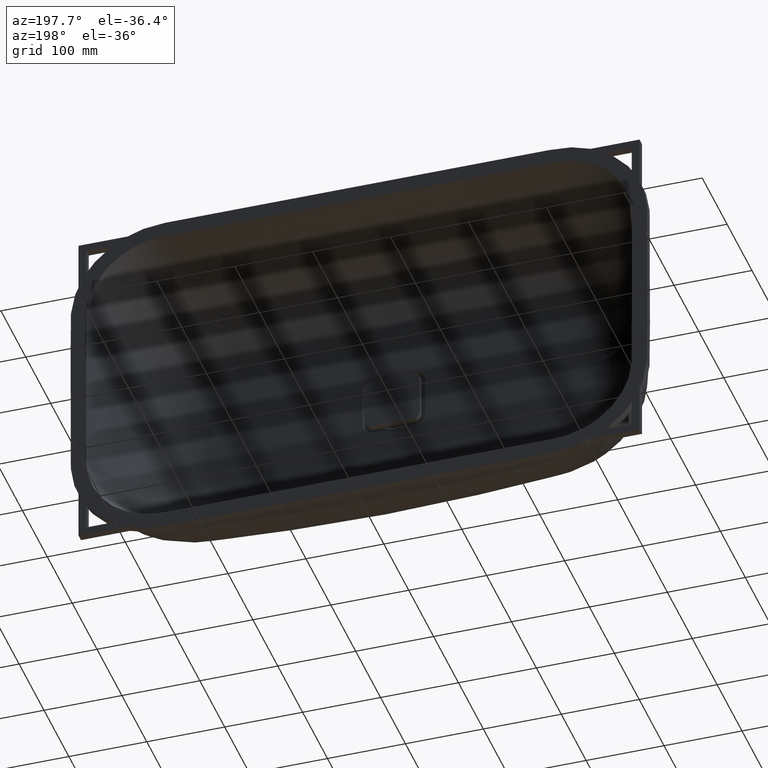
[diagram: clean part render]
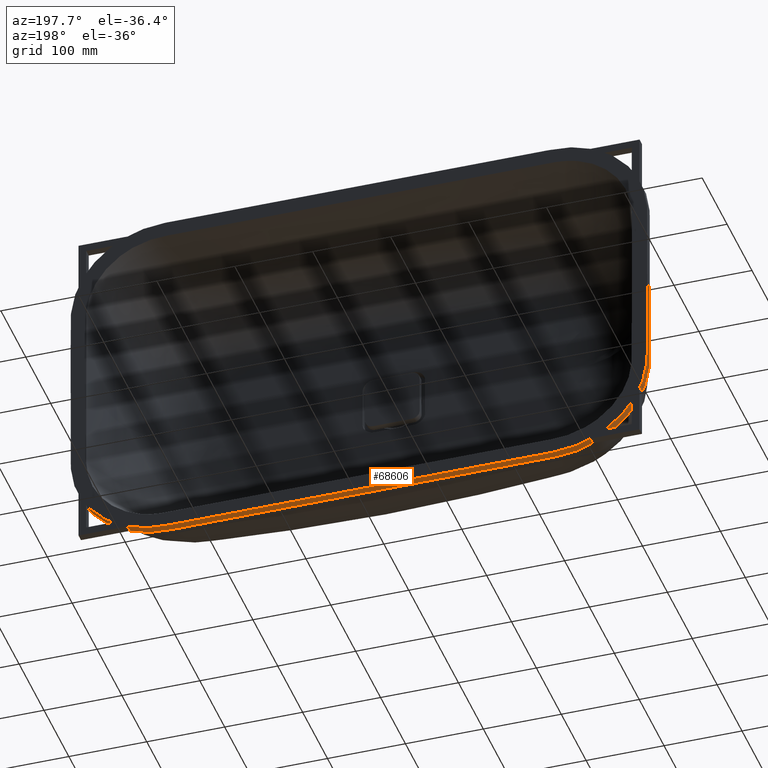
[diagram: same view with one face highlighted and labeled with its STEP entity id]
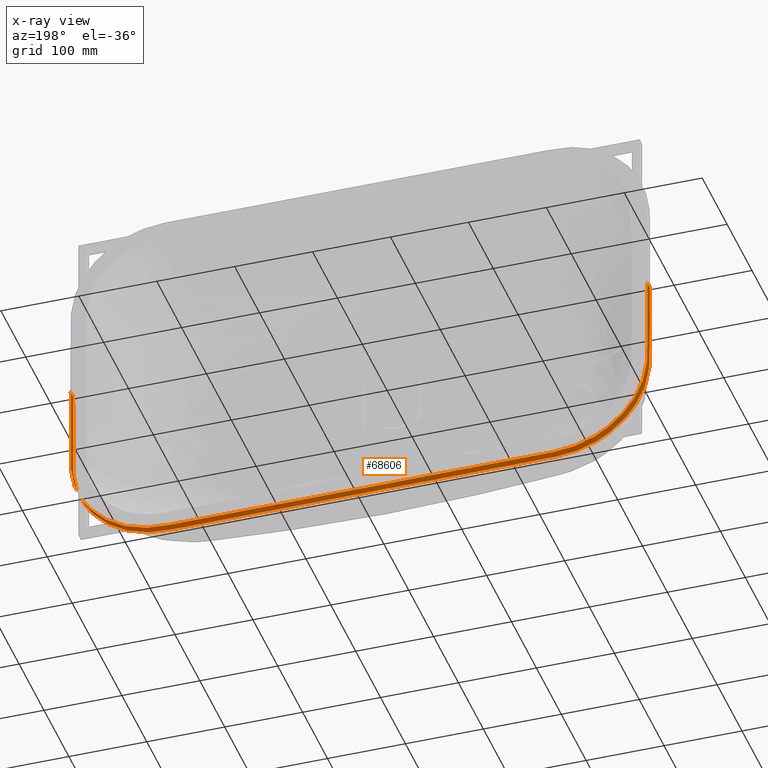
[diagram: x-ray of the same camera — body ghosted, the highlighted face saturated]
A machine part, auxiliary view. The second image highlights one B-rep face of the part: STEP entity #68606.
The next image is the same camera in x-ray: the body ghosted, the highlighted face saturated — about 0% of this face is hidden behind the body in this view.
In plain terms, the highlighted face is a freeform B-spline surface patch.
Its self-contained STEP definition (entity closure, byte-faithful):
#234 = CARTESIAN_POINT ( 'NONE',  ( 32.44533689492934769, -10.00000000000007283, -230.0000000000380282 ) ) ;
#314 = CARTESIAN_POINT ( 'NONE',  ( -156.8191275139739389, -10.00000000000007283, -230.0000000053955489 ) ) ;
#646 = CARTESIAN_POINT ( 'NONE',  ( -241.3132199434992344, -10.00000000000007283, -229.9999933736824858 ) ) ;
#726 = CARTESIAN_POINT ( 'NONE',  ( -235.2282897767607039, -7.285838599102589797E-14, -230.0000025992095516 ) ) ;
#1039 = CARTESIAN_POINT ( 'NONE',  ( 369.9999999215503408, -2.772712417528776703E-14, -87.87279466569438569 ) ) ;
#1058 = CARTESIAN_POINT ( 'NONE',  ( -280.3363205952121575, -10.00000000000007105, -226.2329616254818916 ) ) ;
#1139 = CARTESIAN_POINT ( 'NONE',  ( -250.7332074480156336, -10.00000000000007283, -229.9991818206130745 ) ) ;
#1458 = CARTESIAN_POINT ( 'NONE',  ( 369.6864430236647081, -3.758052570092851383E-14, -119.1001921969885871 ) ) ;
#1478 = CARTESIAN_POINT ( 'NONE',  ( -369.6864430236646513, -10.00000000000003908, -119.1001921969901218 ) ) ;
#1559 = CARTESIAN_POINT ( 'NONE',  ( -272.5347273984065737, -7.112366251504909087E-14, -227.9402078853945000 ) ) ;
#1779 = LINE ( 'NONE', #27400, #68443 ) ;
#1882 = CARTESIAN_POINT ( 'NONE',  ( 280.3363205952139765, -7.138488588416020489E-14, -226.2329616254814653 ) ) ;
#1900 = CARTESIAN_POINT ( 'NONE',  ( -369.9999999215503408, -10.00000000000002842, -87.87279466569546571 ) ) ;
#1982 = CARTESIAN_POINT ( 'NONE',  ( -353.0913786025862464, -10.00000000000005329, -171.9959201989187818 ) ) ;
#2294 = CARTESIAN_POINT ( 'NONE',  ( 241.3132199435013376, -7.257352404517452683E-14, -229.9999933736824289 ) ) ;
#2397 = CARTESIAN_POINT ( 'NONE',  ( -369.2231796589290411, -3.989863994746656317E-14, -123.9083132636469600 ) ) ;
#2710 = CARTESIAN_POINT ( 'NONE',  ( -32.44533689492683237, -7.257352613603534883E-14, -230.0000000000380282 ) ) ;
#2812 = CARTESIAN_POINT ( 'NONE',  ( -370.0000523813992004, -10.00000000000003553, -108.4842689358032857 ) ) ;
#2908 = CARTESIAN_POINT ( 'NONE',  ( 369.9999999986165449, -10.00000000000001066, -32.44533702614127435 ) ) ;
#3122 = CARTESIAN_POINT ( 'NONE',  ( -247.0602996470166204, -7.257352088615581357E-14, -229.9999833621212417 ) ) ;
#3221 = CARTESIAN_POINT ( 'NONE',  ( -370.0000001376325827, -2.949029909160572061E-14, -93.28033090629502055 ) ) ;
#3318 = CARTESIAN_POINT ( 'NONE',  ( 369.9999994738986970, -3.122502256758252770E-14, -97.33605917397574103 ) ) ;
#3524 = CARTESIAN_POINT ( 'NONE',  ( -301.3375124675763459, -6.903844104798725289E-14, -218.7966092659687547 ) ) ;
#3623 = CARTESIAN_POINT ( 'NONE',  ( -370.0000000000000568, -10.00000000000000178, -5.407556139488238323 ) ) ;
#3719 = CARTESIAN_POINT ( 'NONE',  ( 370.0002737202537446, -10.00000000000003553, -109.9847503573792267 ) ) ;
#3936 = CARTESIAN_POINT ( 'NONE',  ( -369.9837355351533574, -3.541286203545981495E-14, -112.2304330767916696 ) ) ;
#4057 = ORIENTED_EDGE ( 'NONE', *, *, #13613, .T. ) ;
#4135 = CARTESIAN_POINT ( 'NONE',  ( 368.5694265312986886, -3.989863994746656317E-14, -128.6755109102203960 ) ) ;
#4359 = CARTESIAN_POINT ( 'NONE',  ( -369.9999999808322286, -2.047541364857557800E-14, -64.89067556598723741 ) ) ;
#4562 = CARTESIAN_POINT ( 'NONE',  ( 330.7752597798513534, -10.00000000000006217, -199.4472116028083519 ) ) ;
#4896 = CARTESIAN_POINT ( 'NONE',  ( 370.0000000003951186, -10.00000000000000533, -16.22266841846388274 ) ) ;
#4974 = CARTESIAN_POINT ( 'NONE',  ( 266.2030324053499157, -7.285838599102589797E-14, -228.9327285942423771 ) ) ;
#5304 = CARTESIAN_POINT ( 'NONE',  ( 369.9998421130367205, -10.00000000000003553, -109.3485733155321071 ) ) ;
#5386 = CARTESIAN_POINT ( 'NONE',  ( 249.2680254088382128, -10.00000000000007283, -229.9999129777619373 ) ) ;
#5595 = VERTEX_POINT ( 'NONE', #9767 ) ;
#5724 = CARTESIAN_POINT ( 'NONE',  ( 344.0916251262462424, -10.00000000000005862, -185.3011088497730441 ) ) ;
#5803 = CARTESIAN_POINT ( 'NONE',  ( 227.1174660438736055, -7.285838599102589797E-14, -229.9999993046553186 ) ) ;
#6137 = CARTESIAN_POINT ( 'NONE',  ( 249.9071089342750156, -10.00000000000007283, -230.0001508669375880 ) ) ;
#6214 = CARTESIAN_POINT ( 'NONE',  ( 97.33601062392219205, -10.00000000000007283, -230.0000000004915819 ) ) ;
#6538 = CARTESIAN_POINT ( 'NONE',  ( 129.7813478840299126, -10.00000000000007283, -229.9999999981669703 ) ) ;
#6616 = CARTESIAN_POINT ( 'NONE',  ( -97.33601062391973358, -7.285838599102589797E-14, -230.0000000004914398 ) ) ;
#6945 = CARTESIAN_POINT ( 'NONE',  ( -219.0059958477463340, -10.00000000000007283, -230.0000001821697992 ) ) ;
#7027 = CARTESIAN_POINT ( 'NONE',  ( -227.1174660438715591, -10.00000000000007283, -229.9999993046552902 ) ) ;
#7348 = CARTESIAN_POINT ( 'NONE',  ( 370.0000000051375650, -1.535655966924644818E-14, -48.66800487696705346 ) ) ;
#7368 = CARTESIAN_POINT ( 'NONE',  ( -261.4155354305581227, -10.00000000000007283, -229.4878407854313878 ) ) ;
#7449 = CARTESIAN_POINT ( 'NONE',  ( -249.2680254088362801, -7.285838599102589797E-14, -229.9999129777618236 ) ) ;
#7761 = CARTESIAN_POINT ( 'NONE',  ( 369.9985107857468734, -3.497370708823961095E-14, -110.8386633332168856 ) ) ;
#7781 = CARTESIAN_POINT ( 'NONE',  ( -367.4470581483514593, -10.00000000000004441, -134.9774096808805552 ) ) ;
#7861 = CARTESIAN_POINT ( 'NONE',  ( -266.2030324053478694, -10.00000000000007283, -228.9327285942426329 ) ) ;
#8182 = CARTESIAN_POINT ( 'NONE',  ( 315.4333475073850650, -6.663998841689066950E-14, -211.1954338164214846 ) ) ;
#8200 = CARTESIAN_POINT ( 'NONE',  ( -370.0000015512933942, -10.00000000000003197, -100.7155903604959946 ) ) ;
#8281 = CARTESIAN_POINT ( 'NONE',  ( -330.7752597798499323, -6.245004513516505540E-14, -199.4472116028095741 ) ) ;
#8601 = CARTESIAN_POINT ( 'NONE',  ( 248.4051379303418798, -7.257353524414461326E-14, -230.0000288654555050 ) ) ;
#8702 = CARTESIAN_POINT ( 'NONE',  ( -368.5694265312981770, -10.00000000000004086, -128.6755109102220445 ) ) ;
#9015 = CARTESIAN_POINT ( 'NONE',  ( 64.89067382028906650, -7.257352613598166842E-14, -229.9999999998679243 ) ) ;
#9117 = CARTESIAN_POINT ( 'NONE',  ( -370.0002737202536878, -3.469446951953614189E-14, -109.9847503573808467 ) ) ;
#9211 = CARTESIAN_POINT ( 'NONE',  ( 369.9999999999998863, -1.734723475976807094E-15, -5.407556139487590841 ) ) ;
#9423 = CARTESIAN_POINT ( 'NONE',  ( -235.2282897767607039, -7.257352695617029754E-14, -230.0000025992095516 ) ) ;
#9526 = CARTESIAN_POINT ( 'NONE',  ( -369.9999994738986970, -10.00000000000003197, -97.33605917397697738 ) ) ;
#9622 = CARTESIAN_POINT ( 'NONE',  ( 370.0000001376323553, -10.00000000000003020, -93.28033090629377000 ) ) ;
#9767 = CARTESIAN_POINT ( 'NONE',  ( -370.0000000000000000, 7.703719777548943412E-31, -3.426078865054194011E-14 ) ) ;
#9833 = CARTESIAN_POINT ( 'NONE',  ( -272.5347273984065737, -7.192358536704899217E-14, -227.9402078853945000 ) ) ;
#9849 = CARTESIAN_POINT ( 'NONE',  ( 369.9999999999998863, 1.698670210949542022E-28, 5.754945131553057536E-13 ) ) ;
#9932 = CARTESIAN_POINT ( 'NONE',  ( -369.9999999986166586, -1.040834085586084257E-14, -32.44533702614214832 ) ) ;
#10030 = CARTESIAN_POINT ( 'NONE',  ( 370.0000523813992572, -3.469446951953614189E-14, -108.4842689358019783 ) ) ;
#10238 = CARTESIAN_POINT ( 'NONE',  ( -369.2231796589290411, -3.909766613526020739E-14, -123.9083132636469600 ) ) ;
#10434 = CARTESIAN_POINT ( 'NONE',  ( 369.2231796589293253, -10.00000000000004086, -123.9083132636453826 ) ) ;
#10651 = CARTESIAN_POINT ( 'NONE',  ( -370.0000001376325827, -2.943340231741263106E-14, -93.28033090629502055 ) ) ;
#10850 = CARTESIAN_POINT ( 'NONE',  ( 353.0913786025872128, -5.377642775528101993E-14, -171.9959201989173323 ) ) ;
#11277 = CARTESIAN_POINT ( 'NONE',  ( 272.5347273984087337, -10.00000000000007105, -227.9402078853939031 ) ) ;
#11611 = CARTESIAN_POINT ( 'NONE',  ( 370.0000102567382783, -10.00000000000003375, -105.4463998884235565 ) ) ;
#11693 = CARTESIAN_POINT ( 'NONE',  ( 250.7332074480180211, -7.285838599102589797E-14, -229.9991818206131029 ) ) ;
#12024 = CARTESIAN_POINT ( 'NONE',  ( 362.6162986912615338, -10.00000000000004796, -151.8170165020840727 ) ) ;
#12104 = CARTESIAN_POINT ( 'NONE',  ( 235.2282897767625229, -10.00000000000007283, -230.0000025992096653 ) ) ;
#12439 = CARTESIAN_POINT ( 'NONE',  ( 254.1704036494629122, -10.00000000000007283, -229.9357047427392331 ) ) ;
#12516 = CARTESIAN_POINT ( 'NONE',  ( 156.8191275139761842, -7.285838599102589797E-14, -230.0000000053956910 ) ) ;
#12844 = CARTESIAN_POINT ( 'NONE',  ( 194.6720158728535353, -10.00000000000007283, -230.0000000356706664 ) ) ;
#12923 = CARTESIAN_POINT ( 'NONE',  ( -64.89067382028653697, -10.00000000000007283, -229.9999999998678959 ) ) ;
#13246 = CARTESIAN_POINT ( 'NONE',  ( -178.4493543980379968, -10.00000000000007283, -229.9999999906547998 ) ) ;
#13322 = CARTESIAN_POINT ( 'NONE',  ( -208.1909280709333530, -7.285838599102589797E-14, -229.9999998948312339 ) ) ;
#13613 = EDGE_CURVE ( 'NONE', #27047, #5595, #1779, .T. ) ;
#13640 = CARTESIAN_POINT ( 'NONE',  ( 369.9999999999998863, -1.706284420961386148E-15, -5.407556139487589952 ) ) ;
#13658 = CARTESIAN_POINT ( 'NONE',  ( -252.1423367717178792, -10.00000000000007283, -229.9854392652011370 ) ) ;
#13743 = CARTESIAN_POINT ( 'NONE',  ( -248.4051379303399756, -10.00000000000007283, -230.0000288654555334 ) ) ;
#14057 = CARTESIAN_POINT ( 'NONE',  ( 370.0000523813992572, -3.423080837808614069E-14, -108.4842689358019783 ) ) ;
#14078 = CARTESIAN_POINT ( 'NONE',  ( -358.9368303385655281, -10.00000000000004974, -160.6374205879357362 ) ) ;
#14159 = CARTESIAN_POINT ( 'NONE',  ( -257.3966411606812699, -7.285838599102589797E-14, -229.7905751632785041 ) ) ;
#14476 = CARTESIAN_POINT ( 'NONE',  ( 353.0913786025872128, -5.427108873845876293E-14, -171.9959201989173323 ) ) ;
#14496 = CARTESIAN_POINT ( 'NONE',  ( -369.9999697595850421, -10.00000000000003375, -107.1399925168129528 ) ) ;
#14578 = CARTESIAN_POINT ( 'NONE',  ( -315.4333475073833597, -10.00000000000006573, -211.1954338164225931 ) ) ;
#14898 = CARTESIAN_POINT ( 'NONE',  ( 250.7332074480180211, -7.257326797009674944E-14, -229.9991818206131029 ) ) ;
#14917 = CARTESIAN_POINT ( 'NONE',  ( -370.0000000000000000, -10.00000000000000000, -3.122502256758252770E-14 ) ) ;
#14998 = CARTESIAN_POINT ( 'NONE',  ( -365.5811764428859760, -4.510281037539698445E-14, -142.7334832046062161 ) ) ;
#15319 = CARTESIAN_POINT ( 'NONE',  ( 156.8191275139761842, -7.257352613772588406E-14, -230.0000000053956910 ) ) ;
#15422 = CARTESIAN_POINT ( 'NONE',  ( -369.9985107857469302, -10.00000000000003553, -110.8386633332185340 ) ) ;
#15517 = CARTESIAN_POINT ( 'NONE',  ( 369.9999999999998863, -10.00000000000000000, 5.785302792382651660E-13 ) ) ;
#15729 = CARTESIAN_POINT ( 'NONE',  ( -208.1909280709333530, -7.257352610283869354E-14, -229.9999998948312339 ) ) ;
#15827 = CARTESIAN_POINT ( 'NONE',  ( -369.9999973128921624, -3.295974604355933479E-14, -103.4197589538131581 ) ) ;
#15922 = CARTESIAN_POINT ( 'NONE',  ( 370.0000000564162406, -2.428612866367529932E-14, -78.40955897690069776 ) ) ;
#16130 = CARTESIAN_POINT ( 'NONE',  ( -257.3966411606812699, -7.250744483662619752E-14, -229.7905751632785041 ) ) ;
#16233 = CARTESIAN_POINT ( 'NONE',  ( -370.0000000051377356, -10.00000000000001599, -48.66800487696790611 ) ) ;
#16331 = CARTESIAN_POINT ( 'NONE',  ( 369.9999697595848716, -10.00000000000003375, -107.1399925168115601 ) ) ;
#16539 = CARTESIAN_POINT ( 'NONE',  ( -365.5811764428859760, -4.503770510363102224E-14, -142.7334832046062161 ) ) ;
#16742 = CARTESIAN_POINT ( 'NONE',  ( 369.9117756355505549, -3.642919299551294898E-14, -115.0811365367326005 ) ) ;
#16959 = CARTESIAN_POINT ( 'NONE',  ( -369.9999973128921624, -3.263276773659039088E-14, -103.4197589538131581 ) ) ;
#17155 = CARTESIAN_POINT ( 'NONE',  ( 358.9368303385662671, -10.00000000000004974, -160.6374205879343435 ) ) ;
#17573 = CARTESIAN_POINT ( 'NONE',  ( 289.4804807030358802, -7.112366251504909087E-14, -223.4557360990964980 ) ) ;
#17915 = CARTESIAN_POINT ( 'NONE',  ( 369.9999994738986970, -10.00000000000003197, -97.33605917397574103 ) ) ;
#17996 = CARTESIAN_POINT ( 'NONE',  ( 252.1423367717200392, -10.00000000000007283, -229.9854392652010802 ) ) ;
#18331 = CARTESIAN_POINT ( 'NONE',  ( 368.5694265312986886, -10.00000000000004086, -128.6755109102203960 ) ) ;
#18410 = CARTESIAN_POINT ( 'NONE',  ( 245.3670214626352788, -7.285838599102589797E-14, -230.0000054136311007 ) ) ;
#18740 = CARTESIAN_POINT ( 'NONE',  ( 266.2030324053499157, -10.00000000000007283, -228.9327285942423771 ) ) ;
#18818 = CARTESIAN_POINT ( 'NONE',  ( 178.4493543980402706, -10.00000000000007283, -229.9999999906549704 ) ) ;
#18830 = B_SPLINE_SURFACE_WITH_KNOTS ( 'NONE', 3, 1, ( 
 ( #15517, #41133 ),
 ( #66758, #9211 ),
 ( #34829, #60445 ),
 ( #2908, #28530 ),
 ( #54145, #79787 ),
 ( #22227, #47841 ),
 ( #73476, #15922 ),
 ( #41537, #67166 ),
 ( #9622, #35240 ),
 ( #60854, #3318 ),
 ( #28935, #54544 ),
 ( #80192, #22633 ),
 ( #48244, #73881 ),
 ( #16331, #41945 ),
 ( #67573, #10030 ),
 ( #35645, #61257 ),
 ( #3719, #29341 ),
 ( #54951, #80598 ),
 ( #23042, #48658 ),
 ( #74297, #16742 ),
 ( #42358, #67980 ),
 ( #10434, #36052 ),
 ( #61672, #4135 ),
 ( #29760, #55368 ),
 ( #81019, #23460 ),
 ( #49074, #74712 ),
 ( #17155, #42772 ),
 ( #68393, #10850 ),
 ( #36471, #62094 ),
 ( #4562, #30183 ),
 ( #55787, #81434 ),
 ( #23871, #49488 ),
 ( #75130, #17573 ),
 ( #43196, #68820 ),
 ( #11277, #36894 ),
 ( #62514, #4974 ),
 ( #30599, #56200 ),
 ( #81850, #24291 ),
 ( #49912, #75553 ),
 ( #17996, #43618 ),
 ( #69241, #11693 ),
 ( #37306, #62928 ),
 ( #5386, #31011 ),
 ( #56619, #82269 ),
 ( #24712, #50329 ),
 ( #75971, #18410 ),
 ( #44030, #69654 ),
 ( #12104, #37720 ),
 ( #63341, #5803 ),
 ( #31429, #57037 ),
 ( #82684, #25121 ),
 ( #50738, #76375 ),
 ( #18818, #44437 ),
 ( #70066, #12516 ),
 ( #38134, #63753 ),
 ( #6214, #31834 ),
 ( #57443, #83087 ),
 ( #25526, #51144 ),
 ( #76782, #19225 ),
 ( #44846, #70474 ),
 ( #12923, #38535 ),
 ( #64153, #6616 ),
 ( #32235, #57847 ),
 ( #314, #25932 ),
 ( #51552, #77183 ),
 ( #19624, #45244 ),
 ( #70874, #13322 ),
 ( #38941, #64562 ),
 ( #7027, #32642 ),
 ( #58260, #726 ),
 ( #26338, #51956 ),
 ( #77592, #20037 ),
 ( #45660, #71291 ),
 ( #13743, #39364 ),
 ( #64983, #7449 ),
 ( #33064, #58676 ),
 ( #1139, #26754 ),
 ( #52373, #78015 ),
 ( #20461, #46082 ),
 ( #71715, #14159 ),
 ( #39780, #65399 ),
 ( #7861, #33476 ),
 ( #59093, #1559 ),
 ( #27179, #52799 ),
 ( #78443, #20882 ),
 ( #46499, #72133 ),
 ( #14578, #40196 ),
 ( #65817, #8281 ),
 ( #33902, #59515 ),
 ( #1982, #27603 ),
 ( #53216, #78856 ),
 ( #21294, #46912 ),
 ( #72552, #14998 ),
 ( #40619, #66244 ),
 ( #8702, #34320 ),
 ( #59936, #2397 ),
 ( #28018, #53632 ),
 ( #79276, #21721 ),
 ( #47335, #72974 ),
 ( #15422, #41039 ),
 ( #66663, #9117 ),
 ( #34734, #60350 ),
 ( #2812, #28435 ),
 ( #54050, #79693 ),
 ( #22135, #47747 ),
 ( #73382, #15827 ),
 ( #41442, #67069 ),
 ( #9526, #35142 ),
 ( #60758, #3221 ),
 ( #28842, #54451 ),
 ( #80097, #22538 ),
 ( #48149, #73785 ),
 ( #16233, #41847 ),
 ( #67476, #9932 ),
 ( #35550, #61164 ),
 ( #3623, #29242 ),
 ( #54853, #80501 ) ),
 .UNSPECIFIED., .F., .F., .F.,
 ( 4, 1, 1, 1, 1, 1, 1, 1, 1, 1, 1, 1, 1, 1, 1, 1, 1, 1, 1, 1, 1, 1, 1, 1, 1, 1, 1, 1, 1, 1, 1, 1, 1, 1, 1, 1, 1, 1, 1, 1, 1, 1, 1, 1, 1, 1, 1, 1, 1, 1, 1, 1, 1, 1, 1, 1, 1, 1, 1, 1, 1, 1, 1, 1, 1, 1, 1, 1, 1, 1, 1, 1, 1, 1, 1, 1, 1, 1, 1, 1, 1, 1, 1, 1, 1, 1, 1, 1, 1, 1, 1, 1, 1, 1, 1, 1, 1, 1, 1, 1, 1, 1, 1, 1, 1, 1, 1, 1, 1, 1, 1, 1, 1, 1, 4 ),
 ( 2, 2 ),
 ( 0.5000000000000000000, 0.5078125000000000000, 0.5156250000000000000, 0.5234375000000000000, 0.5312500000000000000, 0.5390625000000000000, 0.5429687500000000000, 0.5449218750000000000, 0.5468750000000000000, 0.5488281250000000000, 0.5498046875000000000, 0.5507812500000000000, 0.5517578125000000000, 0.5522460937500000000, 0.5527343750000000000, 0.5529785156250000000, 0.5532226562500000000, 0.5537109375000000000, 0.5546875000000000000, 0.5566406250000000000, 0.5585937500000000000, 0.5605468750000000000, 0.5625000000000000000, 0.5664062500000000000, 0.5703125000000000000, 0.5742187500000000000, 0.5781250000000000000, 0.5859375000000000000, 0.5937500000000000000, 0.6015625000000000000, 0.6093750000000000000, 0.6132812500000000000, 0.6171875000000000000, 0.6210937500000000000, 0.6230468750000000000, 0.6250000000000000000, 0.6269531250000000000, 0.6279296875000000000, 0.6289062500000000000, 0.6293945312500000000, 0.6296386718750000000, 0.6298828125000000000, 0.6303710937500000000, 0.6308593750000000000, 0.6318359375000000000, 0.6328125000000000000, 0.6367187500000000000, 0.6406250000000000000, 0.6445312500000000000, 0.6484375000000000000, 0.6562500000000000000, 0.6640625000000000000, 0.6718750000000000000, 0.6875000000000000000, 0.7031250000000000000, 0.7187500000000000000, 0.7343750000000000000, 0.7500000000000000000, 0.7656250000000000000, 0.7812500000000000000, 0.7968750000000000000, 0.8125000000000000000, 0.8281250000000000000, 0.8359375000000000000, 0.8437500000000000000, 0.8515625000000000000, 0.8554687500000000000, 0.8593750000000000000, 0.8632812500000000000, 0.8671875000000000000, 0.8681640625000000000, 0.8691406250000000000, 0.8696289062500000000, 0.8701171875000000000, 0.8703613281250000000, 0.8706054687500000000, 0.8710937500000000000, 0.8720703125000000000, 0.8730468750000000000, 0.8750000000000000000, 0.8769531250000000000, 0.8789062500000000000, 0.8828125000000000000, 0.8867187500000000000, 0.8906250000000000000, 0.8984375000000000000, 0.9062500000000000000, 0.9140625000000000000, 0.9218750000000000000, 0.9257812500000000000, 0.9296875000000000000, 0.9335937500000000000, 0.9375000000000000000, 0.9394531250000000000, 0.9414062500000000000, 0.9433593750000000000, 0.9453125000000000000, 0.9462890625000000000, 0.9467773437500000000, 0.9470214843750000000, 0.9472656250000000000, 0.9477539062500000000, 0.9482421875000000000, 0.9492187500000000000, 0.9501953125000000000, 0.9511718750000000000, 0.9531250000000000000, 0.9550781250000000000, 0.9570312500000000000, 0.9609375000000000000, 0.9687500000000000000, 0.9765625000000000000, 0.9843750000000000000, 0.9921875000000000000, 1.000000000000000000 ),
 ( 0.0000000000000000000, 1.000000000000000000 ),
 .UNSPECIFIED. ) ;
#19148 = CARTESIAN_POINT ( 'NONE',  ( 227.1174660438736055, -10.00000000000007283, -229.9999993046553186 ) ) ;
#19225 = CARTESIAN_POINT ( 'NONE',  ( 1.292368989602721285E-12, -7.285838599102589797E-14, -229.9999999999812701 ) ) ;
#19547 = CARTESIAN_POINT ( 'NONE',  ( -97.33601062391973358, -10.00000000000007283, -230.0000000004914398 ) ) ;
#19624 = CARTESIAN_POINT ( 'NONE',  ( -194.6720158728513752, -10.00000000000007283, -230.0000000356705812 ) ) ;
#19956 = CARTESIAN_POINT ( 'NONE',  ( -249.2680254088362801, -10.00000000000007283, -229.9999129777618236 ) ) ;
#20037 = CARTESIAN_POINT ( 'NONE',  ( -245.3670214626334030, -7.285838599102589797E-14, -230.0000054136309586 ) ) ;
#20359 = CARTESIAN_POINT ( 'NONE',  ( 369.9999973128920487, -3.263276773659002485E-14, -103.4197589538119075 ) ) ;
#20378 = CARTESIAN_POINT ( 'NONE',  ( -330.7752597798499323, -10.00000000000006217, -199.4472116028095741 ) ) ;
#20461 = CARTESIAN_POINT ( 'NONE',  ( -254.1704036494605248, -10.00000000000007283, -229.9357047427392899 ) ) ;
#20780 = CARTESIAN_POINT ( 'NONE',  ( 365.5811764428864308, -4.503770510363056785E-14, -142.7334832046046813 ) ) ;
#20800 = CARTESIAN_POINT ( 'NONE',  ( -370.0002737202536878, -10.00000000000003553, -109.9847503573808467 ) ) ;
#20882 = CARTESIAN_POINT ( 'NONE',  ( -289.4804807030339475, -7.112366251504909087E-14, -223.4557360990971517 ) ) ;
#21194 = CARTESIAN_POINT ( 'NONE',  ( 257.3966411606836004, -7.250744483662622276E-14, -229.7905751632785041 ) ) ;
#21214 = CARTESIAN_POINT ( 'NONE',  ( -369.9999999986166586, -10.00000000000001066, -32.44533702614214832 ) ) ;
#21294 = CARTESIAN_POINT ( 'NONE',  ( -362.6162986912609085, -10.00000000000004796, -151.8170165020855791 ) ) ;
#21618 = CARTESIAN_POINT ( 'NONE',  ( 208.1909280709354846, -7.257352610283874403E-14, -229.9999998948313191 ) ) ;
#21721 = CARTESIAN_POINT ( 'NONE',  ( -369.9117756355506117, -3.642919299551294898E-14, -115.0811365367342347 ) ) ;
#22035 = CARTESIAN_POINT ( 'NONE',  ( -156.8191275139739389, -7.257352613772584620E-14, -230.0000000053955489 ) ) ;
#22135 = CARTESIAN_POINT ( 'NONE',  ( -370.0000102567383919, -10.00000000000003375, -105.4463998884248781 ) ) ;
#22227 = CARTESIAN_POINT ( 'NONE',  ( 369.9999999808321149, -10.00000000000002132, -64.89067556598622843 ) ) ;
#22438 = CARTESIAN_POINT ( 'NONE',  ( -250.7332074480156336, -7.257326797009671158E-14, -229.9991818206130745 ) ) ;
#22538 = CARTESIAN_POINT ( 'NONE',  ( -370.0000000564165816, -2.428612866367529932E-14, -78.40955897690180620 ) ) ;
#22633 = CARTESIAN_POINT ( 'NONE',  ( 369.9999973128920487, -3.295974604355933479E-14, -103.4197589538119075 ) ) ;
#22837 = CARTESIAN_POINT ( 'NONE',  ( -353.0913786025862464, -5.427108873845919838E-14, -171.9959201989187818 ) ) ;
#23042 = CARTESIAN_POINT ( 'NONE',  ( 369.9837355351534711, -10.00000000000003553, -112.2304330767900211 ) ) ;
#23260 = CARTESIAN_POINT ( 'NONE',  ( -370.0000523813992004, -3.423080837808653196E-14, -108.4842689358032857 ) ) ;
#23380 = B_SPLINE_CURVE_WITH_KNOTS ( 'NONE', 3,
 ( #71192, #13640, #39262, #64881, #7348, #32963, #58577, #1039, #26654, #52272, #77912, #20359, #45979, #71612, #14057, #39679, #65297, #7761, #33378, #58992, #1458, #27077, #52697, #78339, #20780, #46399, #72031, #14476, #40097, #65719, #8182, #33803, #59416, #1882, #27501, #53117, #78756, #21194, #46814, #72453, #14898, #40519, #66143, #8601, #34220, #59834, #2294, #27914, #53531, #79173, #21618, #47232, #72870, #15319, #40936, #66563, #9015, #34633, #60249, #2710, #28334, #53950, #79593, #22035, #47647, #73284, #15729, #41342, #66970, #9423, #35041, #60657, #3122, #28743, #54353, #80000, #22438, #48051, #73685, #16130, #41745, #67375, #9833, #35453, #61065, #3524, #29140, #54749, #80399, #22837, #48452, #74091, #16539, #42156, #67782, #10238, #35856, #61471, #3936, #29556, #55167, #80815, #23260, #48877, #74513, #16959, #42573, #68196, #10651, #36269, #61893, #4359, #29980, #55587, #81237, #23676, #49291 ),
 .UNSPECIFIED., .F., .F.,
 ( 4, 1, 1, 1, 1, 1, 1, 1, 1, 1, 1, 1, 1, 1, 1, 1, 1, 1, 1, 1, 1, 1, 1, 1, 1, 1, 1, 1, 1, 1, 1, 1, 1, 1, 1, 1, 1, 1, 1, 1, 1, 1, 1, 1, 1, 1, 1, 1, 1, 1, 1, 1, 1, 1, 1, 1, 1, 1, 1, 1, 1, 1, 1, 1, 1, 1, 1, 1, 1, 1, 1, 1, 1, 1, 1, 1, 1, 1, 1, 1, 1, 1, 1, 1, 1, 1, 1, 1, 1, 1, 1, 1, 1, 1, 1, 1, 1, 1, 1, 1, 1, 1, 1, 1, 1, 1, 1, 1, 1, 1, 1, 1, 1, 1, 4 ),
 ( 0.5000000000000000000, 0.5078125000000000000, 0.5156250000000000000, 0.5234375000000000000, 0.5312500000000000000, 0.5390625000000000000, 0.5429687500000000000, 0.5449218750000000000, 0.5468750000000000000, 0.5488281250000000000, 0.5498046875000000000, 0.5507812500000000000, 0.5517578125000000000, 0.5522460937500000000, 0.5527343750000000000, 0.5529785156250000000, 0.5532226562500000000, 0.5537109375000000000, 0.5546875000000000000, 0.5566406250000000000, 0.5585937500000000000, 0.5605468750000000000, 0.5625000000000000000, 0.5664062500000000000, 0.5703125000000000000, 0.5742187500000000000, 0.5781250000000000000, 0.5859375000000000000, 0.5937500000000000000, 0.6015625000000000000, 0.6093750000000000000, 0.6132812500000000000, 0.6171875000000000000, 0.6210937500000000000, 0.6230468750000000000, 0.6250000000000000000, 0.6269531250000000000, 0.6279296875000000000, 0.6289062500000000000, 0.6293945312500000000, 0.6296386718750000000, 0.6298828125000000000, 0.6303710937500000000, 0.6308593750000000000, 0.6318359375000000000, 0.6328125000000000000, 0.6367187500000000000, 0.6406250000000000000, 0.6445312500000000000, 0.6484375000000000000, 0.6562500000000000000, 0.6640625000000000000, 0.6718750000000000000, 0.6875000000000000000, 0.7031250000000000000, 0.7187500000000000000, 0.7343750000000000000, 0.7500000000000000000, 0.7656250000000000000, 0.7812500000000000000, 0.7968750000000000000, 0.8125000000000000000, 0.8281250000000000000, 0.8359375000000000000, 0.8437500000000000000, 0.8515625000000000000, 0.8554687500000000000, 0.8593750000000000000, 0.8632812500000000000, 0.8671875000000000000, 0.8681640625000000000, 0.8691406250000000000, 0.8696289062500000000, 0.8701171875000000000, 0.8703613281250000000, 0.8706054687500000000, 0.8710937500000000000, 0.8720703125000000000, 0.8730468750000000000, 0.8750000000000000000, 0.8769531250000000000, 0.8789062500000000000, 0.8828125000000000000, 0.8867187500000000000, 0.8906250000000000000, 0.8984375000000000000, 0.9062500000000000000, 0.9140625000000000000, 0.9218750000000000000, 0.9257812500000000000, 0.9296875000000000000, 0.9335937500000000000, 0.9375000000000000000, 0.9394531250000000000, 0.9414062500000000000, 0.9433593750000000000, 0.9453125000000000000, 0.9462890625000000000, 0.9467773437500000000, 0.9470214843750000000, 0.9472656250000000000, 0.9477539062500000000, 0.9482421875000000000, 0.9492187500000000000, 0.9501953125000000000, 0.9511718750000000000, 0.9531250000000000000, 0.9550781250000000000, 0.9570312500000000000, 0.9609375000000000000, 0.9687500000000000000, 0.9765625000000000000, 0.9843750000000000000, 0.9921875000000000000, 1.000000000000000000 ),
 .UNSPECIFIED. ) ;
#23460 = CARTESIAN_POINT ( 'NONE',  ( 365.5811764428864308, -4.510281037539698445E-14, -142.7334832046046813 ) ) ;
#23676 = CARTESIAN_POINT ( 'NONE',  ( -370.0000000000000568, -1.706284420961568375E-15, -5.407556139488240987 ) ) ;
#23871 = CARTESIAN_POINT ( 'NONE',  ( 301.3375124675778807, -10.00000000000006928, -218.7966092659679305 ) ) ;
#24211 = CARTESIAN_POINT ( 'NONE',  ( 370.0000000564162406, -10.00000000000002487, -78.40955897690069776 ) ) ;
#24291 = CARTESIAN_POINT ( 'NONE',  ( 257.3966411606836004, -7.285838599102589797E-14, -229.7905751632785041 ) ) ;
#24631 = CARTESIAN_POINT ( 'NONE',  ( 369.9117756355505549, -10.00000000000003730, -115.0811365367326005 ) ) ;
#24712 = CARTESIAN_POINT ( 'NONE',  ( 247.0602996470185246, -10.00000000000007283, -229.9999833621213270 ) ) ;
#25046 = CARTESIAN_POINT ( 'NONE',  ( 289.4804807030358802, -10.00000000000007105, -223.4557360990964980 ) ) ;
#25121 = CARTESIAN_POINT ( 'NONE',  ( 208.1909280709354846, -7.285838599102589797E-14, -229.9999998948313191 ) ) ;
#25447 = CARTESIAN_POINT ( 'NONE',  ( 245.3670214626352788, -10.00000000000007283, -230.0000054136311007 ) ) ;
#25526 = CARTESIAN_POINT ( 'NONE',  ( 32.44533689492934769, -10.00000000000007283, -230.0000000000380282 ) ) ;
#25854 = CARTESIAN_POINT ( 'NONE',  ( 1.292368989602721285E-12, -10.00000000000007283, -229.9999999999812701 ) ) ;
#25932 = CARTESIAN_POINT ( 'NONE',  ( -156.8191275139739389, -7.285838599102589797E-14, -230.0000000053955489 ) ) ;
#26125 = LINE ( 'NONE', #51744, #59474 ) ;
#26260 = CARTESIAN_POINT ( 'NONE',  ( -245.3670214626334030, -10.00000000000007283, -230.0000054136309586 ) ) ;
#26338 = CARTESIAN_POINT ( 'NONE',  ( -241.3132199434992344, -10.00000000000007283, -229.9999933736824858 ) ) ;
#26654 = CARTESIAN_POINT ( 'NONE',  ( 370.0000001376323553, -2.943340231741225871E-14, -93.28033090629377000 ) ) ;
#26672 = CARTESIAN_POINT ( 'NONE',  ( -289.4804807030339475, -10.00000000000007105, -223.4557360990971517 ) ) ;
#26754 = CARTESIAN_POINT ( 'NONE',  ( -250.7332074480156336, -7.285838599102589797E-14, -229.9991818206130745 ) ) ;
#27047 = VERTEX_POINT ( 'NONE', #56310 ) ;
#27077 = CARTESIAN_POINT ( 'NONE',  ( 369.2231796589293253, -3.909766613525973408E-14, -123.9083132636453826 ) ) ;
#27097 = CARTESIAN_POINT ( 'NONE',  ( -369.9117756355506117, -10.00000000000003730, -115.0811365367342347 ) ) ;
#27179 = CARTESIAN_POINT ( 'NONE',  ( -280.3363205952121575, -10.00000000000007105, -226.2329616254818916 ) ) ;
#27400 = CARTESIAN_POINT ( 'NONE',  ( -370.0000000000000000, -10.00000000000000000, -3.122502256758252770E-14 ) ) ;
#27501 = CARTESIAN_POINT ( 'NONE',  ( 272.5347273984087337, -7.192358536704882809E-14, -227.9402078853939031 ) ) ;
#27520 = CARTESIAN_POINT ( 'NONE',  ( -370.0000000564165816, -10.00000000000002487, -78.40955897690180620 ) ) ;
#27603 = CARTESIAN_POINT ( 'NONE',  ( -353.0913786025862464, -5.377642775528101993E-14, -171.9959201989187818 ) ) ;
#27914 = CARTESIAN_POINT ( 'NONE',  ( 235.2282897767625229, -7.257352695617036065E-14, -230.0000025992096653 ) ) ;
#28018 = CARTESIAN_POINT ( 'NONE',  ( -369.6864430236646513, -10.00000000000003908, -119.1001921969901218 ) ) ;
#28334 = CARTESIAN_POINT ( 'NONE',  ( -64.89067382028653697, -7.257352613598166842E-14, -229.9999999998678959 ) ) ;
#28435 = CARTESIAN_POINT ( 'NONE',  ( -370.0000523813992004, -3.469446951953614189E-14, -108.4842689358032857 ) ) ;
#28530 = CARTESIAN_POINT ( 'NONE',  ( 369.9999999986165449, -1.040834085586084257E-14, -32.44533702614127435 ) ) ;
#28743 = CARTESIAN_POINT ( 'NONE',  ( -248.4051379303399756, -7.257353524414460064E-14, -230.0000288654555334 ) ) ;
#28842 = CARTESIAN_POINT ( 'NONE',  ( -369.9999999215503408, -10.00000000000002842, -87.87279466569546571 ) ) ;
#28935 = CARTESIAN_POINT ( 'NONE',  ( 370.0000015512931668, -10.00000000000003197, -100.7155903604947440 ) ) ;
#29140 = CARTESIAN_POINT ( 'NONE',  ( -315.4333475073833597, -6.663998841689099767E-14, -211.1954338164225931 ) ) ;
#29242 = CARTESIAN_POINT ( 'NONE',  ( -370.0000000000000568, -1.734723475976807094E-15, -5.407556139488241875 ) ) ;
#29341 = CARTESIAN_POINT ( 'NONE',  ( 370.0002737202537446, -3.469446951953614189E-14, -109.9847503573792267 ) ) ;
#29556 = CARTESIAN_POINT ( 'NONE',  ( -369.9985107857469302, -3.497370708824010951E-14, -110.8386633332185340 ) ) ;
#29760 = CARTESIAN_POINT ( 'NONE',  ( 367.4470581483518004, -10.00000000000004441, -134.9774096808791342 ) ) ;
#29980 = CARTESIAN_POINT ( 'NONE',  ( -370.0000000051377356, -1.535655966924669430E-14, -48.66800487696790611 ) ) ;
#30183 = CARTESIAN_POINT ( 'NONE',  ( 330.7752597798513534, -6.245004513516505540E-14, -199.4472116028083519 ) ) ;
#30520 = CARTESIAN_POINT ( 'NONE',  ( 369.9999999986165449, -10.00000000000001066, -32.44533702614127435 ) ) ;
#30599 = CARTESIAN_POINT ( 'NONE',  ( 261.4155354305604533, -10.00000000000007283, -229.4878407854311035 ) ) ;
#30607 = EDGE_CURVE ( 'NONE', #49805, #27047, #43568, .T. ) ;
#30931 = CARTESIAN_POINT ( 'NONE',  ( 370.0002737202537446, -10.00000000000003553, -109.9847503573792267 ) ) ;
#31011 = CARTESIAN_POINT ( 'NONE',  ( 249.2680254088382128, -7.285838599102589797E-14, -229.9999129777619373 ) ) ;
#31351 = CARTESIAN_POINT ( 'NONE',  ( 330.7752597798513534, -10.00000000000006217, -199.4472116028083519 ) ) ;
#31429 = CARTESIAN_POINT ( 'NONE',  ( 219.0059958477482667, -10.00000000000007283, -230.0000001821698277 ) ) ;
#31759 = CARTESIAN_POINT ( 'NONE',  ( 249.2680254088382128, -10.00000000000007283, -229.9999129777619373 ) ) ;
#31834 = CARTESIAN_POINT ( 'NONE',  ( 97.33601062392219205, -7.285838599102589797E-14, -230.0000000004915819 ) ) ;
#32156 = CARTESIAN_POINT ( 'NONE',  ( 97.33601062392219205, -10.00000000000007283, -230.0000000004915819 ) ) ;
#32235 = CARTESIAN_POINT ( 'NONE',  ( -129.7813478840275820, -10.00000000000007283, -229.9999999981670271 ) ) ;
#32562 = CARTESIAN_POINT ( 'NONE',  ( -227.1174660438715591, -10.00000000000007283, -229.9999993046552902 ) ) ;
#32642 = CARTESIAN_POINT ( 'NONE',  ( -227.1174660438715591, -7.285838599102589797E-14, -229.9999993046552902 ) ) ;
#32963 = CARTESIAN_POINT ( 'NONE',  ( 369.9999999808321149, -2.047541364857528770E-14, -64.89067556598622843 ) ) ;
#32981 = CARTESIAN_POINT ( 'NONE',  ( -266.2030324053478694, -10.00000000000007283, -228.9327285942426329 ) ) ;
#33064 = CARTESIAN_POINT ( 'NONE',  ( -249.9071089342731398, -10.00000000000007283, -230.0001508669375596 ) ) ;
#33378 = CARTESIAN_POINT ( 'NONE',  ( 369.9837355351534711, -3.541286203545931639E-14, -112.2304330767900211 ) ) ;
#33397 = CARTESIAN_POINT ( 'NONE',  ( -368.5694265312981770, -10.00000000000004086, -128.6755109102220445 ) ) ;
#33476 = CARTESIAN_POINT ( 'NONE',  ( -266.2030324053478694, -7.285838599102589797E-14, -228.9327285942426329 ) ) ;
#33803 = CARTESIAN_POINT ( 'NONE',  ( 301.3375124675778807, -6.903844104798701308E-14, -218.7966092659679305 ) ) ;
#33821 = CARTESIAN_POINT ( 'NONE',  ( -369.9999994738986970, -10.00000000000003197, -97.33605917397697738 ) ) ;
#33902 = CARTESIAN_POINT ( 'NONE',  ( -344.0916251262450487, -10.00000000000005862, -185.3011088497745220 ) ) ;
#34220 = CARTESIAN_POINT ( 'NONE',  ( 247.0602996470185246, -7.257352088615586406E-14, -229.9999833621213270 ) ) ;
#34320 = CARTESIAN_POINT ( 'NONE',  ( -368.5694265312981770, -3.989863994746656317E-14, -128.6755109102220445 ) ) ;
#34633 = CARTESIAN_POINT ( 'NONE',  ( 32.44533689492934769, -7.257352613603534883E-14, -230.0000000000380282 ) ) ;
#34734 = CARTESIAN_POINT ( 'NONE',  ( -369.9998421130369479, -10.00000000000003553, -109.3485733155333719 ) ) ;
#34829 = CARTESIAN_POINT ( 'NONE',  ( 370.0000000003951186, -10.00000000000000533, -16.22266841846388274 ) ) ;
#35041 = CARTESIAN_POINT ( 'NONE',  ( -241.3132199434992344, -7.257352404517451421E-14, -229.9999933736824858 ) ) ;
#35142 = CARTESIAN_POINT ( 'NONE',  ( -369.9999994738986970, -3.122502256758252770E-14, -97.33605917397697738 ) ) ;
#35240 = CARTESIAN_POINT ( 'NONE',  ( 370.0000001376323553, -2.949029909160572061E-14, -93.28033090629377000 ) ) ;
#35453 = CARTESIAN_POINT ( 'NONE',  ( -280.3363205952121575, -7.138488588416031848E-14, -226.2329616254818916 ) ) ;
#35550 = CARTESIAN_POINT ( 'NONE',  ( -370.0000000003953460, -10.00000000000000533, -16.22266841846452934 ) ) ;
#35645 = CARTESIAN_POINT ( 'NONE',  ( 369.9998421130367205, -10.00000000000003553, -109.3485733155321071 ) ) ;
#35856 = CARTESIAN_POINT ( 'NONE',  ( -369.6864430236646513, -3.758052570092897452E-14, -119.1001921969901218 ) ) ;
#36052 = CARTESIAN_POINT ( 'NONE',  ( 369.2231796589293253, -3.989863994746656317E-14, -123.9083132636453826 ) ) ;
#36269 = CARTESIAN_POINT ( 'NONE',  ( -369.9999999215503408, -2.772712417528808257E-14, -87.87279466569546571 ) ) ;
#36471 = CARTESIAN_POINT ( 'NONE',  ( 344.0916251262462424, -10.00000000000005862, -185.3011088497730441 ) ) ;
#36812 = ORIENTED_EDGE ( 'NONE', *, *, #30607, .T. ) ;
#36813 = CARTESIAN_POINT ( 'NONE',  ( 369.9999999999998863, -10.00000000000000000, 5.785302792382651660E-13 ) ) ;
#36894 = CARTESIAN_POINT ( 'NONE',  ( 272.5347273984087337, -7.112366251504909087E-14, -227.9402078853939031 ) ) ;
#37226 = CARTESIAN_POINT ( 'NONE',  ( 369.9999697595848716, -10.00000000000003375, -107.1399925168115601 ) ) ;
#37306 = CARTESIAN_POINT ( 'NONE',  ( 249.9071089342750156, -10.00000000000007283, -230.0001508669375880 ) ) ;
#37640 = CARTESIAN_POINT ( 'NONE',  ( 358.9368303385662671, -10.00000000000004974, -160.6374205879343435 ) ) ;
#37720 = CARTESIAN_POINT ( 'NONE',  ( 235.2282897767625229, -7.285838599102589797E-14, -230.0000025992096653 ) ) ;
#38056 = CARTESIAN_POINT ( 'NONE',  ( 252.1423367717200392, -10.00000000000007283, -229.9854392652010802 ) ) ;
#38134 = CARTESIAN_POINT ( 'NONE',  ( 129.7813478840299126, -10.00000000000007283, -229.9999999981669703 ) ) ;
#38457 = CARTESIAN_POINT ( 'NONE',  ( 178.4493543980402706, -10.00000000000007283, -229.9999999906549704 ) ) ;
#38535 = CARTESIAN_POINT ( 'NONE',  ( -64.89067382028653697, -7.285838599102589797E-14, -229.9999999998678959 ) ) ;
#38861 = CARTESIAN_POINT ( 'NONE',  ( -194.6720158728513752, -10.00000000000007283, -230.0000000356705812 ) ) ;
#38941 = CARTESIAN_POINT ( 'NONE',  ( -219.0059958477463340, -10.00000000000007283, -230.0000001821697992 ) ) ;
#39262 = CARTESIAN_POINT ( 'NONE',  ( 370.0000000003951186, -5.118853262884487400E-15, -16.22266841846388630 ) ) ;
#39280 = CARTESIAN_POINT ( 'NONE',  ( -254.1704036494605248, -10.00000000000007283, -229.9357047427392899 ) ) ;
#39364 = CARTESIAN_POINT ( 'NONE',  ( -248.4051379303399756, -7.285838599102589797E-14, -230.0000288654555334 ) ) ;
#39679 = CARTESIAN_POINT ( 'NONE',  ( 369.9998421130367205, -3.450352844978972625E-14, -109.3485733155321071 ) ) ;
#39699 = CARTESIAN_POINT ( 'NONE',  ( -362.6162986912609085, -10.00000000000004796, -151.8170165020855791 ) ) ;
#39780 = CARTESIAN_POINT ( 'NONE',  ( -261.4155354305581227, -10.00000000000007283, -229.4878407854313878 ) ) ;
#40097 = CARTESIAN_POINT ( 'NONE',  ( 344.0916251262462424, -5.846936898323092097E-14, -185.3011088497730441 ) ) ;
#40116 = CARTESIAN_POINT ( 'NONE',  ( -370.0000102567383919, -10.00000000000003375, -105.4463998884248781 ) ) ;
#40196 = CARTESIAN_POINT ( 'NONE',  ( -315.4333475073833597, -6.591949208711866959E-14, -211.1954338164225931 ) ) ;
#40519 = CARTESIAN_POINT ( 'NONE',  ( 249.9071089342750156, -7.257357374013482950E-14, -230.0001508669375880 ) ) ;
#40619 = CARTESIAN_POINT ( 'NONE',  ( -367.4470581483514593, -10.00000000000004441, -134.9774096808805552 ) ) ;
#40936 = CARTESIAN_POINT ( 'NONE',  ( 129.7813478840299126, -7.257352613544495271E-14, -229.9999999981669703 ) ) ;
#41039 = CARTESIAN_POINT ( 'NONE',  ( -369.9985107857469302, -3.469446951953614189E-14, -110.8386633332185340 ) ) ;
#41133 = CARTESIAN_POINT ( 'NONE',  ( 369.9999999999998863, 0.0000000000000000000, 5.753749085366989050E-13 ) ) ;
#41342 = CARTESIAN_POINT ( 'NONE',  ( -219.0059958477463340, -7.257352619350464833E-14, -230.0000001821697992 ) ) ;
#41442 = CARTESIAN_POINT ( 'NONE',  ( -370.0000015512933942, -10.00000000000003197, -100.7155903604959946 ) ) ;
#41537 = CARTESIAN_POINT ( 'NONE',  ( 369.9999999215503408, -10.00000000000002842, -87.87279466569438569 ) ) ;
#41745 = CARTESIAN_POINT ( 'NONE',  ( -261.4155354305581227, -7.241192091800464152E-14, -229.4878407854313878 ) ) ;
#41847 = CARTESIAN_POINT ( 'NONE',  ( -370.0000000051377356, -1.561251128379126385E-14, -48.66800487696790611 ) ) ;
#41945 = CARTESIAN_POINT ( 'NONE',  ( 369.9999697595848716, -3.295974604355933479E-14, -107.1399925168115601 ) ) ;
#42156 = CARTESIAN_POINT ( 'NONE',  ( -367.4470581483514593, -4.259037638803527714E-14, -134.9774096808805552 ) ) ;
#42358 = CARTESIAN_POINT ( 'NONE',  ( 369.6864430236647081, -10.00000000000003908, -119.1001921969885871 ) ) ;
#42573 = CARTESIAN_POINT ( 'NONE',  ( -370.0000015512933942, -3.177950230144553650E-14, -100.7155903604959946 ) ) ;
#42772 = CARTESIAN_POINT ( 'NONE',  ( 358.9368303385662671, -5.030698080332740574E-14, -160.6374205879343435 ) ) ;
#43196 = CARTESIAN_POINT ( 'NONE',  ( 280.3363205952139765, -10.00000000000007105, -226.2329616254814653 ) ) ;
#43537 = CARTESIAN_POINT ( 'NONE',  ( 370.0000015512931668, -10.00000000000003197, -100.7155903604947440 ) ) ;
#43568 = B_SPLINE_CURVE_WITH_KNOTS ( 'NONE', 3,
 ( #36813, #62431, #4896, #30520, #56121, #81769, #24211, #49831, #75472, #17915, #43537, #69161, #11611, #37226, #62849, #5304, #30931, #56538, #82189, #24631, #50251, #75890, #18331, #43948, #69573, #12024, #37640, #63261, #5724, #31351, #56959, #82608, #25046, #50662, #76299, #18740, #44360, #69988, #12439, #38056, #63677, #6137, #31759, #57366, #83010, #25447, #51066, #76704, #19148, #44767, #70396, #12844, #38457, #64075, #6538, #32156, #57767, #234, #25854, #51473, #77106, #19547, #45167, #70794, #13246, #38861, #64482, #6945, #32562, #58179, #646, #26260, #51879, #77512, #19956, #45579, #71211, #13658, #39280, #64900, #7368, #32981, #58595, #1058, #26672, #52291, #77933, #20378, #45999, #71631, #14078, #39699, #65316, #7781, #33397, #59011, #1478, #27097, #52717, #78359, #20800, #46419, #72051, #14496, #40116, #65737, #8200, #33821, #59436, #1900, #27520, #53135, #78775, #21214, #46832, #72471, #14917 ),
 .UNSPECIFIED., .F., .F.,
 ( 4, 1, 1, 1, 1, 1, 1, 1, 1, 1, 1, 1, 1, 1, 1, 1, 1, 1, 1, 1, 1, 1, 1, 1, 1, 1, 1, 1, 1, 1, 1, 1, 1, 1, 1, 1, 1, 1, 1, 1, 1, 1, 1, 1, 1, 1, 1, 1, 1, 1, 1, 1, 1, 1, 1, 1, 1, 1, 1, 1, 1, 1, 1, 1, 1, 1, 1, 1, 1, 1, 1, 1, 1, 1, 1, 1, 1, 1, 1, 1, 1, 1, 1, 1, 1, 1, 1, 1, 1, 1, 1, 1, 1, 1, 1, 1, 1, 1, 1, 1, 1, 1, 1, 1, 1, 1, 1, 1, 1, 1, 1, 1, 1, 1, 4 ),
 ( 0.5000000000000000000, 0.5078125000000000000, 0.5156250000000000000, 0.5234375000000000000, 0.5312500000000000000, 0.5390625000000000000, 0.5429687500000000000, 0.5449218750000000000, 0.5468750000000000000, 0.5488281250000000000, 0.5498046875000000000, 0.5507812500000000000, 0.5517578125000000000, 0.5522460937500000000, 0.5527343750000000000, 0.5529785156250000000, 0.5532226562500000000, 0.5537109375000000000, 0.5546875000000000000, 0.5566406250000000000, 0.5585937500000000000, 0.5605468750000000000, 0.5625000000000000000, 0.5664062500000000000, 0.5703125000000000000, 0.5742187500000000000, 0.5781250000000000000, 0.5859375000000000000, 0.5937500000000000000, 0.6015625000000000000, 0.6093750000000000000, 0.6132812500000000000, 0.6171875000000000000, 0.6210937500000000000, 0.6230468750000000000, 0.6250000000000000000, 0.6269531250000000000, 0.6279296875000000000, 0.6289062500000000000, 0.6293945312500000000, 0.6296386718750000000, 0.6298828125000000000, 0.6303710937500000000, 0.6308593750000000000, 0.6318359375000000000, 0.6328125000000000000, 0.6367187500000000000, 0.6406250000000000000, 0.6445312500000000000, 0.6484375000000000000, 0.6562500000000000000, 0.6640625000000000000, 0.6718750000000000000, 0.6875000000000000000, 0.7031250000000000000, 0.7187500000000000000, 0.7343750000000000000, 0.7500000000000000000, 0.7656250000000000000, 0.7812500000000000000, 0.7968750000000000000, 0.8125000000000000000, 0.8281250000000000000, 0.8359375000000000000, 0.8437500000000000000, 0.8515625000000000000, 0.8554687500000000000, 0.8593750000000000000, 0.8632812500000000000, 0.8671875000000000000, 0.8681640625000000000, 0.8691406250000000000, 0.8696289062500000000, 0.8701171875000000000, 0.8703613281250000000, 0.8706054687500000000, 0.8710937500000000000, 0.8720703125000000000, 0.8730468750000000000, 0.8750000000000000000, 0.8769531250000000000, 0.8789062500000000000, 0.8828125000000000000, 0.8867187500000000000, 0.8906250000000000000, 0.8984375000000000000, 0.9062500000000000000, 0.9140625000000000000, 0.9218750000000000000, 0.9257812500000000000, 0.9296875000000000000, 0.9335937500000000000, 0.9375000000000000000, 0.9394531250000000000, 0.9414062500000000000, 0.9433593750000000000, 0.9453125000000000000, 0.9462890625000000000, 0.9467773437500000000, 0.9470214843750000000, 0.9472656250000000000, 0.9477539062500000000, 0.9482421875000000000, 0.9492187500000000000, 0.9501953125000000000, 0.9511718750000000000, 0.9531250000000000000, 0.9550781250000000000, 0.9570312500000000000, 0.9609375000000000000, 0.9687500000000000000, 0.9765625000000000000, 0.9843750000000000000, 0.9921875000000000000, 1.000000000000000000 ),
 .UNSPECIFIED. ) ;
#43618 = CARTESIAN_POINT ( 'NONE',  ( 252.1423367717200392, -7.285838599102589797E-14, -229.9854392652010802 ) ) ;
#43948 = CARTESIAN_POINT ( 'NONE',  ( 367.4470581483518004, -10.00000000000004441, -134.9774096808791342 ) ) ;
#44030 = CARTESIAN_POINT ( 'NONE',  ( 241.3132199435013376, -10.00000000000007283, -229.9999933736824289 ) ) ;
#44360 = CARTESIAN_POINT ( 'NONE',  ( 261.4155354305604533, -10.00000000000007283, -229.4878407854311035 ) ) ;
#44437 = CARTESIAN_POINT ( 'NONE',  ( 178.4493543980402706, -7.285838599102589797E-14, -229.9999999906549704 ) ) ;
#44767 = CARTESIAN_POINT ( 'NONE',  ( 219.0059958477482667, -10.00000000000007283, -230.0000001821698277 ) ) ;
#44846 = CARTESIAN_POINT ( 'NONE',  ( -32.44533689492683237, -10.00000000000007283, -230.0000000000380282 ) ) ;
#45167 = CARTESIAN_POINT ( 'NONE',  ( -129.7813478840275820, -10.00000000000007283, -229.9999999981670271 ) ) ;
#45244 = CARTESIAN_POINT ( 'NONE',  ( -194.6720158728513752, -7.285838599102589797E-14, -230.0000000356705812 ) ) ;
#45579 = CARTESIAN_POINT ( 'NONE',  ( -249.9071089342731398, -10.00000000000007283, -230.0001508669375596 ) ) ;
#45660 = CARTESIAN_POINT ( 'NONE',  ( -247.0602996470166204, -10.00000000000007283, -229.9999833621212417 ) ) ;
#45871 = EDGE_LOOP ( 'NONE', ( #71159, #36812, #4057, #55132 ) ) ;
#45979 = CARTESIAN_POINT ( 'NONE',  ( 370.0000102567382783, -3.327224807935686279E-14, -105.4463998884235565 ) ) ;
#45999 = CARTESIAN_POINT ( 'NONE',  ( -344.0916251262450487, -10.00000000000005862, -185.3011088497745220 ) ) ;
#46082 = CARTESIAN_POINT ( 'NONE',  ( -254.1704036494605248, -7.285838599102589797E-14, -229.9357047427392899 ) ) ;
#46399 = CARTESIAN_POINT ( 'NONE',  ( 362.6162986912615338, -4.790389658698733733E-14, -151.8170165020840727 ) ) ;
#46419 = CARTESIAN_POINT ( 'NONE',  ( -369.9998421130369479, -10.00000000000003553, -109.3485733155333719 ) ) ;
#46499 = CARTESIAN_POINT ( 'NONE',  ( -301.3375124675763459, -10.00000000000006928, -218.7966092659687547 ) ) ;
#46814 = CARTESIAN_POINT ( 'NONE',  ( 254.1704036494629122, -7.255323859892232274E-14, -229.9357047427392331 ) ) ;
#46832 = CARTESIAN_POINT ( 'NONE',  ( -370.0000000003953460, -10.00000000000000533, -16.22266841846452934 ) ) ;
#46912 = CARTESIAN_POINT ( 'NONE',  ( -362.6162986912609085, -4.857225732735059864E-14, -151.8170165020855791 ) ) ;
#47232 = CARTESIAN_POINT ( 'NONE',  ( 194.6720158728535353, -7.257352614727876243E-14, -230.0000000356706664 ) ) ;
#47335 = CARTESIAN_POINT ( 'NONE',  ( -369.9837355351533574, -10.00000000000003553, -112.2304330767916696 ) ) ;
#47647 = CARTESIAN_POINT ( 'NONE',  ( -178.4493543980379968, -7.257352613307458346E-14, -229.9999999906547998 ) ) ;
#47747 = CARTESIAN_POINT ( 'NONE',  ( -370.0000102567383919, -3.295974604355933479E-14, -105.4463998884248781 ) ) ;
#47841 = CARTESIAN_POINT ( 'NONE',  ( 369.9999999808321149, -2.081668171172168513E-14, -64.89067556598622843 ) ) ;
#48051 = CARTESIAN_POINT ( 'NONE',  ( -252.1423367717178792, -7.256893168442556344E-14, -229.9854392652011370 ) ) ;
#48149 = CARTESIAN_POINT ( 'NONE',  ( -369.9999999808322286, -10.00000000000002132, -64.89067556598723741 ) ) ;
#48244 = CARTESIAN_POINT ( 'NONE',  ( 370.0000102567382783, -10.00000000000003375, -105.4463998884235565 ) ) ;
#48452 = CARTESIAN_POINT ( 'NONE',  ( -358.9368303385655281, -5.068706104983445312E-14, -160.6374205879357362 ) ) ;
#48658 = CARTESIAN_POINT ( 'NONE',  ( 369.9837355351534711, -3.469446951953614189E-14, -112.2304330767900211 ) ) ;
#48877 = CARTESIAN_POINT ( 'NONE',  ( -369.9999697595850421, -3.380663933535768526E-14, -107.1399925168129528 ) ) ;
#49074 = CARTESIAN_POINT ( 'NONE',  ( 362.6162986912615338, -10.00000000000004796, -151.8170165020840727 ) ) ;
#49291 = CARTESIAN_POINT ( 'NONE',  ( -370.0000000000000000, 7.703719777548943412E-31, -3.426078865054194011E-14 ) ) ;
#49488 = CARTESIAN_POINT ( 'NONE',  ( 301.3375124675778807, -6.938893903907228378E-14, -218.7966092659679305 ) ) ;
#49805 = VERTEX_POINT ( 'NONE', #82667 ) ;
#49831 = CARTESIAN_POINT ( 'NONE',  ( 369.9999999215503408, -10.00000000000002842, -87.87279466569438569 ) ) ;
#49912 = CARTESIAN_POINT ( 'NONE',  ( 254.1704036494629122, -10.00000000000007283, -229.9357047427392331 ) ) ;
#50251 = CARTESIAN_POINT ( 'NONE',  ( 369.6864430236647081, -10.00000000000003908, -119.1001921969885871 ) ) ;
#50329 = CARTESIAN_POINT ( 'NONE',  ( 247.0602996470185246, -7.285838599102589797E-14, -229.9999833621213270 ) ) ;
#50662 = CARTESIAN_POINT ( 'NONE',  ( 280.3363205952139765, -10.00000000000007105, -226.2329616254814653 ) ) ;
#50738 = CARTESIAN_POINT ( 'NONE',  ( 194.6720158728535353, -10.00000000000007283, -230.0000000356706664 ) ) ;
#51066 = CARTESIAN_POINT ( 'NONE',  ( 241.3132199435013376, -10.00000000000007283, -229.9999933736824289 ) ) ;
#51144 = CARTESIAN_POINT ( 'NONE',  ( 32.44533689492934769, -7.285838599102589797E-14, -230.0000000000380282 ) ) ;
#51473 = CARTESIAN_POINT ( 'NONE',  ( -32.44533689492683237, -10.00000000000007283, -230.0000000000380282 ) ) ;
#51552 = CARTESIAN_POINT ( 'NONE',  ( -178.4493543980379968, -10.00000000000007283, -229.9999999906547998 ) ) ;
#51744 = CARTESIAN_POINT ( 'NONE',  ( 369.9999999999998863, -10.00000000000000000, 5.785302792382651660E-13 ) ) ;
#51879 = CARTESIAN_POINT ( 'NONE',  ( -247.0602996470166204, -10.00000000000007283, -229.9999833621212417 ) ) ;
#51956 = CARTESIAN_POINT ( 'NONE',  ( -241.3132199434992344, -7.285838599102589797E-14, -229.9999933736824858 ) ) ;
#52272 = CARTESIAN_POINT ( 'NONE',  ( 369.9999994738986970, -3.071313493234802681E-14, -97.33605917397574103 ) ) ;
#52291 = CARTESIAN_POINT ( 'NONE',  ( -301.3375124675763459, -10.00000000000006928, -218.7966092659687547 ) ) ;
#52373 = CARTESIAN_POINT ( 'NONE',  ( -252.1423367717178792, -10.00000000000007283, -229.9854392652011370 ) ) ;
#52697 = CARTESIAN_POINT ( 'NONE',  ( 368.5694265312986886, -4.060189371351756241E-14, -128.6755109102203960 ) ) ;
#52717 = CARTESIAN_POINT ( 'NONE',  ( -369.9837355351533574, -10.00000000000003553, -112.2304330767916696 ) ) ;
#52799 = CARTESIAN_POINT ( 'NONE',  ( -280.3363205952121575, -7.112366251504909087E-14, -226.2329616254818916 ) ) ;
#53017 = DIRECTION ( 'NONE',  ( 3.108277162125713320E-32, 1.000000000000000000, -3.155370701566232354E-16 ) ) ;
#53117 = CARTESIAN_POINT ( 'NONE',  ( 266.2030324053499157, -7.223676244358864733E-14, -228.9327285942423771 ) ) ;
#53135 = CARTESIAN_POINT ( 'NONE',  ( -369.9999999808322286, -10.00000000000002132, -64.89067556598723741 ) ) ;
#53216 = CARTESIAN_POINT ( 'NONE',  ( -358.9368303385655281, -10.00000000000004974, -160.6374205879357362 ) ) ;
#53531 = CARTESIAN_POINT ( 'NONE',  ( 227.1174660438736055, -7.257352591661633862E-14, -229.9999993046553186 ) ) ;
#53632 = CARTESIAN_POINT ( 'NONE',  ( -369.6864430236646513, -3.816391647148975608E-14, -119.1001921969901218 ) ) ;
#53950 = CARTESIAN_POINT ( 'NONE',  ( -97.33601062391973358, -7.257352613617841664E-14, -230.0000000004914398 ) ) ;
#54050 = CARTESIAN_POINT ( 'NONE',  ( -369.9999697595850421, -10.00000000000003375, -107.1399925168129528 ) ) ;
#54145 = CARTESIAN_POINT ( 'NONE',  ( 370.0000000051375650, -10.00000000000001599, -48.66800487696705346 ) ) ;
#54353 = CARTESIAN_POINT ( 'NONE',  ( -249.2680254088362801, -7.257349867728126491E-14, -229.9999129777618236 ) ) ;
#54451 = CARTESIAN_POINT ( 'NONE',  ( -369.9999999215503408, -2.775557561562891351E-14, -87.87279466569546571 ) ) ;
#54544 = CARTESIAN_POINT ( 'NONE',  ( 370.0000015512931668, -3.122502256758252770E-14, -100.7155903604947440 ) ) ;
#54749 = CARTESIAN_POINT ( 'NONE',  ( -330.7752597798499323, -6.293298880005858525E-14, -199.4472116028095741 ) ) ;
#54853 = CARTESIAN_POINT ( 'NONE',  ( -370.0000000000000000, -10.00000000000000000, -3.122502256758252770E-14 ) ) ;
#54951 = CARTESIAN_POINT ( 'NONE',  ( 369.9985107857468734, -10.00000000000003553, -110.8386633332168856 ) ) ;
#55132 = ORIENTED_EDGE ( 'NONE', *, *, #70702, .F. ) ;
#55167 = CARTESIAN_POINT ( 'NONE',  ( -370.0002737202536878, -3.470426588967556373E-14, -109.9847503573808467 ) ) ;
#55368 = CARTESIAN_POINT ( 'NONE',  ( 367.4470581483518004, -4.336808689942017736E-14, -134.9774096808791342 ) ) ;
#55587 = CARTESIAN_POINT ( 'NONE',  ( -369.9999999986166586, -1.023770658547308884E-14, -32.44533702614214832 ) ) ;
#55787 = CARTESIAN_POINT ( 'NONE',  ( 315.4333475073850650, -10.00000000000006573, -211.1954338164214846 ) ) ;
#56121 = CARTESIAN_POINT ( 'NONE',  ( 370.0000000051375650, -10.00000000000001599, -48.66800487696705346 ) ) ;
#56200 = CARTESIAN_POINT ( 'NONE',  ( 261.4155354305604533, -7.285838599102589797E-14, -229.4878407854311035 ) ) ;
#56310 = CARTESIAN_POINT ( 'NONE',  ( -370.0000000000000000, -10.00000000000000000, -3.122502256758252770E-14 ) ) ;
#56538 = CARTESIAN_POINT ( 'NONE',  ( 369.9985107857468734, -10.00000000000003553, -110.8386633332168856 ) ) ;
#56619 = CARTESIAN_POINT ( 'NONE',  ( 248.4051379303418798, -10.00000000000007283, -230.0000288654555050 ) ) ;
#56959 = CARTESIAN_POINT ( 'NONE',  ( 315.4333475073850650, -10.00000000000006573, -211.1954338164214846 ) ) ;
#57037 = CARTESIAN_POINT ( 'NONE',  ( 219.0059958477482667, -7.285838599102589797E-14, -230.0000001821698277 ) ) ;
#57366 = CARTESIAN_POINT ( 'NONE',  ( 248.4051379303418798, -10.00000000000007283, -230.0000288654555050 ) ) ;
#57443 = CARTESIAN_POINT ( 'NONE',  ( 64.89067382028906650, -10.00000000000007283, -229.9999999998679243 ) ) ;
#57767 = CARTESIAN_POINT ( 'NONE',  ( 64.89067382028906650, -10.00000000000007283, -229.9999999998679243 ) ) ;
#57847 = CARTESIAN_POINT ( 'NONE',  ( -129.7813478840275820, -7.285838599102589797E-14, -229.9999999981670271 ) ) ;
#58179 = CARTESIAN_POINT ( 'NONE',  ( -235.2282897767607039, -10.00000000000007283, -230.0000025992095516 ) ) ;
#58260 = CARTESIAN_POINT ( 'NONE',  ( -235.2282897767607039, -10.00000000000007283, -230.0000025992095516 ) ) ;
#58577 = CARTESIAN_POINT ( 'NONE',  ( 370.0000000564162406, -2.474112251184421671E-14, -78.40955897690069776 ) ) ;
#58595 = CARTESIAN_POINT ( 'NONE',  ( -272.5347273984065737, -10.00000000000007105, -227.9402078853945000 ) ) ;
#58676 = CARTESIAN_POINT ( 'NONE',  ( -249.9071089342731398, -7.285838599102589797E-14, -230.0001508669375596 ) ) ;
#58992 = CARTESIAN_POINT ( 'NONE',  ( 369.9117756355505549, -3.631236465309494805E-14, -115.0811365367326005 ) ) ;
#59011 = CARTESIAN_POINT ( 'NONE',  ( -369.2231796589290411, -10.00000000000004086, -123.9083132636469600 ) ) ;
#59093 = CARTESIAN_POINT ( 'NONE',  ( -272.5347273984065737, -10.00000000000007105, -227.9402078853945000 ) ) ;
#59416 = CARTESIAN_POINT ( 'NONE',  ( 289.4804807030358802, -7.050856827840051167E-14, -223.4557360990964980 ) ) ;
#59436 = CARTESIAN_POINT ( 'NONE',  ( -370.0000001376325827, -10.00000000000003020, -93.28033090629502055 ) ) ;
#59474 = VECTOR ( 'NONE', #77376, 1000.000000000000000 ) ;
#59515 = CARTESIAN_POINT ( 'NONE',  ( -344.0916251262450487, -5.898059818321144121E-14, -185.3011088497745220 ) ) ;
#59834 = CARTESIAN_POINT ( 'NONE',  ( 245.3670214626352788, -7.257352784422465558E-14, -230.0000054136311007 ) ) ;
#59936 = CARTESIAN_POINT ( 'NONE',  ( -369.2231796589290411, -10.00000000000004086, -123.9083132636469600 ) ) ;
#60249 = CARTESIAN_POINT ( 'NONE',  ( 1.292368989602721285E-12, -7.257352613601743853E-14, -229.9999999999812701 ) ) ;
#60350 = CARTESIAN_POINT ( 'NONE',  ( -369.9998421130369479, -3.469446951953614189E-14, -109.3485733155333719 ) ) ;
#60445 = CARTESIAN_POINT ( 'NONE',  ( 370.0000000003951186, -5.204170427930421283E-15, -16.22266841846388630 ) ) ;
#60657 = CARTESIAN_POINT ( 'NONE',  ( -245.3670214626334030, -7.257352784422459247E-14, -230.0000054136309586 ) ) ;
#60758 = CARTESIAN_POINT ( 'NONE',  ( -370.0000001376325827, -10.00000000000003020, -93.28033090629502055 ) ) ;
#60854 = CARTESIAN_POINT ( 'NONE',  ( 369.9999994738986970, -10.00000000000003197, -97.33605917397574103 ) ) ;
#61065 = CARTESIAN_POINT ( 'NONE',  ( -289.4804807030339475, -7.050856827840068838E-14, -223.4557360990971517 ) ) ;
#61164 = CARTESIAN_POINT ( 'NONE',  ( -370.0000000003953460, -5.204170427930421283E-15, -16.22266841846453289 ) ) ;
#61257 = CARTESIAN_POINT ( 'NONE',  ( 369.9998421130367205, -3.469446951953614189E-14, -109.3485733155321071 ) ) ;
#61471 = CARTESIAN_POINT ( 'NONE',  ( -369.9117756355506117, -3.631236465309544030E-14, -115.0811365367342347 ) ) ;
#61672 = CARTESIAN_POINT ( 'NONE',  ( 368.5694265312986886, -10.00000000000004086, -128.6755109102203960 ) ) ;
#61893 = CARTESIAN_POINT ( 'NONE',  ( -370.0000000564165816, -2.474112251184453856E-14, -78.40955897690180620 ) ) ;
#62094 = CARTESIAN_POINT ( 'NONE',  ( 344.0916251262462424, -5.898059818321144121E-14, -185.3011088497730441 ) ) ;
#62431 = CARTESIAN_POINT ( 'NONE',  ( 369.9999999999998863, -10.00000000000000178, -5.407556139487587288 ) ) ;
#62514 = CARTESIAN_POINT ( 'NONE',  ( 266.2030324053499157, -10.00000000000007283, -228.9327285942423771 ) ) ;
#62849 = CARTESIAN_POINT ( 'NONE',  ( 370.0000523813992572, -10.00000000000003553, -108.4842689358019783 ) ) ;
#62928 = CARTESIAN_POINT ( 'NONE',  ( 249.9071089342750156, -7.285838599102589797E-14, -230.0001508669375880 ) ) ;
#63261 = CARTESIAN_POINT ( 'NONE',  ( 353.0913786025872128, -10.00000000000005329, -171.9959201989173323 ) ) ;
#63341 = CARTESIAN_POINT ( 'NONE',  ( 227.1174660438736055, -10.00000000000007283, -229.9999993046553186 ) ) ;
#63677 = CARTESIAN_POINT ( 'NONE',  ( 250.7332074480180211, -10.00000000000007283, -229.9991818206131029 ) ) ;
#63753 = CARTESIAN_POINT ( 'NONE',  ( 129.7813478840299126, -7.285838599102589797E-14, -229.9999999981669703 ) ) ;
#64075 = CARTESIAN_POINT ( 'NONE',  ( 156.8191275139761842, -10.00000000000007283, -230.0000000053956910 ) ) ;
#64153 = CARTESIAN_POINT ( 'NONE',  ( -97.33601062391973358, -10.00000000000007283, -230.0000000004914398 ) ) ;
#64482 = CARTESIAN_POINT ( 'NONE',  ( -208.1909280709333530, -10.00000000000007283, -229.9999998948312339 ) ) ;
#64562 = CARTESIAN_POINT ( 'NONE',  ( -219.0059958477463340, -7.285838599102589797E-14, -230.0000001821697992 ) ) ;
#64881 = CARTESIAN_POINT ( 'NONE',  ( 369.9999999986165449, -1.023770658547283483E-14, -32.44533702614127435 ) ) ;
#64900 = CARTESIAN_POINT ( 'NONE',  ( -257.3966411606812699, -10.00000000000007283, -229.7905751632785041 ) ) ;
#64983 = CARTESIAN_POINT ( 'NONE',  ( -249.2680254088362801, -10.00000000000007283, -229.9999129777618236 ) ) ;
#65105 = EDGE_CURVE ( 'NONE', #49805, #77720, #26125, .T. ) ;
#65297 = CARTESIAN_POINT ( 'NONE',  ( 370.0002737202537446, -3.470426588967507779E-14, -109.9847503573792267 ) ) ;
#65316 = CARTESIAN_POINT ( 'NONE',  ( -365.5811764428859760, -10.00000000000004619, -142.7334832046062161 ) ) ;
#65399 = CARTESIAN_POINT ( 'NONE',  ( -261.4155354305581227, -7.285838599102589797E-14, -229.4878407854313878 ) ) ;
#65719 = CARTESIAN_POINT ( 'NONE',  ( 330.7752597798513534, -6.293298880005823184E-14, -199.4472116028083519 ) ) ;
#65737 = CARTESIAN_POINT ( 'NONE',  ( -369.9999973128921624, -10.00000000000003375, -103.4197589538131581 ) ) ;
#65817 = CARTESIAN_POINT ( 'NONE',  ( -330.7752597798499323, -10.00000000000006217, -199.4472116028095741 ) ) ;
#66143 = CARTESIAN_POINT ( 'NONE',  ( 249.2680254088382128, -7.257349867728132802E-14, -229.9999129777619373 ) ) ;
#66244 = CARTESIAN_POINT ( 'NONE',  ( -367.4470581483514593, -4.336808689942017736E-14, -134.9774096808805552 ) ) ;
#66563 = CARTESIAN_POINT ( 'NONE',  ( 97.33601062392219205, -7.257352613617845451E-14, -230.0000000004915819 ) ) ;
#66663 = CARTESIAN_POINT ( 'NONE',  ( -370.0002737202536878, -10.00000000000003553, -109.9847503573808467 ) ) ;
#66758 = CARTESIAN_POINT ( 'NONE',  ( 369.9999999999998863, -10.00000000000000178, -5.407556139487587288 ) ) ;
#66970 = CARTESIAN_POINT ( 'NONE',  ( -227.1174660438715591, -7.257352591661630075E-14, -229.9999993046552902 ) ) ;
#67069 = CARTESIAN_POINT ( 'NONE',  ( -370.0000015512933942, -3.122502256758252770E-14, -100.7155903604959946 ) ) ;
#67166 = CARTESIAN_POINT ( 'NONE',  ( 369.9999999215503408, -2.775557561562891351E-14, -87.87279466569438569 ) ) ;
#67375 = CARTESIAN_POINT ( 'NONE',  ( -266.2030324053478694, -7.223676244358871044E-14, -228.9327285942426329 ) ) ;
#67476 = CARTESIAN_POINT ( 'NONE',  ( -369.9999999986166586, -10.00000000000001066, -32.44533702614214832 ) ) ;
#67573 = CARTESIAN_POINT ( 'NONE',  ( 370.0000523813992572, -10.00000000000003553, -108.4842689358019783 ) ) ;
#67782 = CARTESIAN_POINT ( 'NONE',  ( -368.5694265312981770, -4.060189371351806097E-14, -128.6755109102220445 ) ) ;
#67980 = CARTESIAN_POINT ( 'NONE',  ( 369.6864430236647081, -3.816391647148975608E-14, -119.1001921969885871 ) ) ;
#68196 = CARTESIAN_POINT ( 'NONE',  ( -369.9999994738986970, -3.071313493234839284E-14, -97.33605917397697738 ) ) ;
#68393 = CARTESIAN_POINT ( 'NONE',  ( 353.0913786025872128, -10.00000000000005329, -171.9959201989173323 ) ) ;
#68443 = VECTOR ( 'NONE', #53017, 1000.000000000000000 ) ;
#68606 = ADVANCED_FACE ( 'NONE', ( #73069 ), #18830, .T. ) ;
#68820 = CARTESIAN_POINT ( 'NONE',  ( 280.3363205952139765, -7.112366251504909087E-14, -226.2329616254814653 ) ) ;
#69161 = CARTESIAN_POINT ( 'NONE',  ( 369.9999973128920487, -10.00000000000003375, -103.4197589538119075 ) ) ;
#69241 = CARTESIAN_POINT ( 'NONE',  ( 250.7332074480180211, -10.00000000000007283, -229.9991818206131029 ) ) ;
#69573 = CARTESIAN_POINT ( 'NONE',  ( 365.5811764428864308, -10.00000000000004619, -142.7334832046046813 ) ) ;
#69654 = CARTESIAN_POINT ( 'NONE',  ( 241.3132199435013376, -7.285838599102589797E-14, -229.9999933736824289 ) ) ;
#69988 = CARTESIAN_POINT ( 'NONE',  ( 257.3966411606836004, -10.00000000000007283, -229.7905751632785041 ) ) ;
#70066 = CARTESIAN_POINT ( 'NONE',  ( 156.8191275139761842, -10.00000000000007283, -230.0000000053956910 ) ) ;
#70396 = CARTESIAN_POINT ( 'NONE',  ( 208.1909280709354846, -10.00000000000007283, -229.9999998948313191 ) ) ;
#70474 = CARTESIAN_POINT ( 'NONE',  ( -32.44533689492683237, -7.285838599102589797E-14, -230.0000000000380282 ) ) ;
#70702 = EDGE_CURVE ( 'NONE', #77720, #5595, #23380, .T. ) ;
#70794 = CARTESIAN_POINT ( 'NONE',  ( -156.8191275139739389, -10.00000000000007283, -230.0000000053955489 ) ) ;
#70874 = CARTESIAN_POINT ( 'NONE',  ( -208.1909280709333530, -10.00000000000007283, -229.9999998948312339 ) ) ;
#71159 = ORIENTED_EDGE ( 'NONE', *, *, #65105, .F. ) ;
#71192 = CARTESIAN_POINT ( 'NONE',  ( 369.9999999999998863, 1.698670210949542022E-28, 5.754945131553057536E-13 ) ) ;
#71211 = CARTESIAN_POINT ( 'NONE',  ( -250.7332074480156336, -10.00000000000007283, -229.9991818206130745 ) ) ;
#71291 = CARTESIAN_POINT ( 'NONE',  ( -247.0602996470166204, -7.285838599102589797E-14, -229.9999833621212417 ) ) ;
#71612 = CARTESIAN_POINT ( 'NONE',  ( 369.9999697595848716, -3.380663933535726874E-14, -107.1399925168115601 ) ) ;
#71631 = CARTESIAN_POINT ( 'NONE',  ( -353.0913786025862464, -10.00000000000005329, -171.9959201989187818 ) ) ;
#71715 = CARTESIAN_POINT ( 'NONE',  ( -257.3966411606812699, -10.00000000000007283, -229.7905751632785041 ) ) ;
#72031 = CARTESIAN_POINT ( 'NONE',  ( 358.9368303385662671, -5.068706104983404291E-14, -160.6374205879343435 ) ) ;
#72051 = CARTESIAN_POINT ( 'NONE',  ( -370.0000523813992004, -10.00000000000003553, -108.4842689358032857 ) ) ;
#72133 = CARTESIAN_POINT ( 'NONE',  ( -301.3375124675763459, -6.938893903907228378E-14, -218.7966092659687547 ) ) ;
#72453 = CARTESIAN_POINT ( 'NONE',  ( 252.1423367717200392, -7.256893168442557607E-14, -229.9854392652010802 ) ) ;
#72471 = CARTESIAN_POINT ( 'NONE',  ( -370.0000000000000568, -10.00000000000000178, -5.407556139488238323 ) ) ;
#72552 = CARTESIAN_POINT ( 'NONE',  ( -365.5811764428859760, -10.00000000000004619, -142.7334832046062161 ) ) ;
#72870 = CARTESIAN_POINT ( 'NONE',  ( 178.4493543980402706, -7.257352613307463395E-14, -229.9999999906549704 ) ) ;
#72974 = CARTESIAN_POINT ( 'NONE',  ( -369.9837355351533574, -3.469446951953614189E-14, -112.2304330767916696 ) ) ;
#73069 = FACE_OUTER_BOUND ( 'NONE', #45871, .T. ) ;
#73284 = CARTESIAN_POINT ( 'NONE',  ( -194.6720158728513752, -7.257352614727873719E-14, -230.0000000356705812 ) ) ;
#73382 = CARTESIAN_POINT ( 'NONE',  ( -369.9999973128921624, -10.00000000000003375, -103.4197589538131581 ) ) ;
#73476 = CARTESIAN_POINT ( 'NONE',  ( 370.0000000564162406, -10.00000000000002487, -78.40955897690069776 ) ) ;
#73685 = CARTESIAN_POINT ( 'NONE',  ( -254.1704036494605248, -7.255323859892231012E-14, -229.9357047427392899 ) ) ;
#73785 = CARTESIAN_POINT ( 'NONE',  ( -369.9999999808322286, -2.081668171172168513E-14, -64.89067556598723741 ) ) ;
#73881 = CARTESIAN_POINT ( 'NONE',  ( 370.0000102567382783, -3.295974604355933479E-14, -105.4463998884235565 ) ) ;
#74091 = CARTESIAN_POINT ( 'NONE',  ( -362.6162986912609085, -4.790389658698779171E-14, -151.8170165020855791 ) ) ;
#74297 = CARTESIAN_POINT ( 'NONE',  ( 369.9117756355505549, -10.00000000000003730, -115.0811365367326005 ) ) ;
#74513 = CARTESIAN_POINT ( 'NONE',  ( -370.0000102567383919, -3.327224807935725407E-14, -105.4463998884248781 ) ) ;
#74712 = CARTESIAN_POINT ( 'NONE',  ( 362.6162986912615338, -4.857225732735059864E-14, -151.8170165020840727 ) ) ;
#75130 = CARTESIAN_POINT ( 'NONE',  ( 289.4804807030358802, -10.00000000000007105, -223.4557360990964980 ) ) ;
#75472 = CARTESIAN_POINT ( 'NONE',  ( 370.0000001376323553, -10.00000000000003020, -93.28033090629377000 ) ) ;
#75553 = CARTESIAN_POINT ( 'NONE',  ( 254.1704036494629122, -7.285838599102589797E-14, -229.9357047427392331 ) ) ;
#75890 = CARTESIAN_POINT ( 'NONE',  ( 369.2231796589293253, -10.00000000000004086, -123.9083132636453826 ) ) ;
#75971 = CARTESIAN_POINT ( 'NONE',  ( 245.3670214626352788, -10.00000000000007283, -230.0000054136311007 ) ) ;
#76299 = CARTESIAN_POINT ( 'NONE',  ( 272.5347273984087337, -10.00000000000007105, -227.9402078853939031 ) ) ;
#76375 = CARTESIAN_POINT ( 'NONE',  ( 194.6720158728535353, -7.285838599102589797E-14, -230.0000000356706664 ) ) ;
#76704 = CARTESIAN_POINT ( 'NONE',  ( 235.2282897767625229, -10.00000000000007283, -230.0000025992096653 ) ) ;
#76782 = CARTESIAN_POINT ( 'NONE',  ( 1.292368989602721285E-12, -10.00000000000007283, -229.9999999999812701 ) ) ;
#77106 = CARTESIAN_POINT ( 'NONE',  ( -64.89067382028653697, -10.00000000000007283, -229.9999999998678959 ) ) ;
#77183 = CARTESIAN_POINT ( 'NONE',  ( -178.4493543980379968, -7.285838599102589797E-14, -229.9999999906547998 ) ) ;
#77376 = DIRECTION ( 'NONE',  ( 3.108277162125713320E-32, 1.000000000000000000, -3.155370701566232354E-16 ) ) ;
#77512 = CARTESIAN_POINT ( 'NONE',  ( -248.4051379303399756, -10.00000000000007283, -230.0000288654555334 ) ) ;
#77592 = CARTESIAN_POINT ( 'NONE',  ( -245.3670214626334030, -10.00000000000007283, -230.0000054136309586 ) ) ;
#77720 = VERTEX_POINT ( 'NONE', #9849 ) ;
#77912 = CARTESIAN_POINT ( 'NONE',  ( 370.0000015512931668, -3.177950230144517047E-14, -100.7155903604947440 ) ) ;
#77933 = CARTESIAN_POINT ( 'NONE',  ( -315.4333475073833597, -10.00000000000006573, -211.1954338164225931 ) ) ;
#78015 = CARTESIAN_POINT ( 'NONE',  ( -252.1423367717178792, -7.285838599102589797E-14, -229.9854392652011370 ) ) ;
#78339 = CARTESIAN_POINT ( 'NONE',  ( 367.4470581483518004, -4.259037638803484169E-14, -134.9774096808791342 ) ) ;
#78359 = CARTESIAN_POINT ( 'NONE',  ( -369.9985107857469302, -10.00000000000003553, -110.8386633332185340 ) ) ;
#78443 = CARTESIAN_POINT ( 'NONE',  ( -289.4804807030339475, -10.00000000000007105, -223.4557360990971517 ) ) ;
#78756 = CARTESIAN_POINT ( 'NONE',  ( 261.4155354305604533, -7.241192091800457841E-14, -229.4878407854311035 ) ) ;
#78775 = CARTESIAN_POINT ( 'NONE',  ( -370.0000000051377356, -10.00000000000001599, -48.66800487696790611 ) ) ;
#78856 = CARTESIAN_POINT ( 'NONE',  ( -358.9368303385655281, -5.030698080332740574E-14, -160.6374205879357362 ) ) ;
#79173 = CARTESIAN_POINT ( 'NONE',  ( 219.0059958477482667, -7.257352619350468619E-14, -230.0000001821698277 ) ) ;
#79276 = CARTESIAN_POINT ( 'NONE',  ( -369.9117756355506117, -10.00000000000003730, -115.0811365367342347 ) ) ;
#79593 = CARTESIAN_POINT ( 'NONE',  ( -129.7813478840275820, -7.257352613544497795E-14, -229.9999999981670271 ) ) ;
#79693 = CARTESIAN_POINT ( 'NONE',  ( -369.9999697595850421, -3.295974604355933479E-14, -107.1399925168129528 ) ) ;
#79787 = CARTESIAN_POINT ( 'NONE',  ( 370.0000000051375650, -1.561251128379126385E-14, -48.66800487696705346 ) ) ;
#80000 = CARTESIAN_POINT ( 'NONE',  ( -249.9071089342731398, -7.257357374013480426E-14, -230.0001508669375596 ) ) ;
#80097 = CARTESIAN_POINT ( 'NONE',  ( -370.0000000564165816, -10.00000000000002487, -78.40955897690180620 ) ) ;
#80192 = CARTESIAN_POINT ( 'NONE',  ( 369.9999973128920487, -10.00000000000003375, -103.4197589538119075 ) ) ;
#80399 = CARTESIAN_POINT ( 'NONE',  ( -344.0916251262450487, -5.846936898323136274E-14, -185.3011088497745220 ) ) ;
#80501 = CARTESIAN_POINT ( 'NONE',  ( -370.0000000000000000, 0.0000000000000000000, -3.438039326914875710E-14 ) ) ;
#80598 = CARTESIAN_POINT ( 'NONE',  ( 369.9985107857468734, -3.469446951953614189E-14, -110.8386633332168856 ) ) ;
#80815 = CARTESIAN_POINT ( 'NONE',  ( -369.9998421130369479, -3.450352844979009859E-14, -109.3485733155333719 ) ) ;
#81019 = CARTESIAN_POINT ( 'NONE',  ( 365.5811764428864308, -10.00000000000004619, -142.7334832046046813 ) ) ;
#81237 = CARTESIAN_POINT ( 'NONE',  ( -370.0000000003953460, -5.118853262884667260E-15, -16.22266841846453289 ) ) ;
#81434 = CARTESIAN_POINT ( 'NONE',  ( 315.4333475073850650, -6.591949208711866959E-14, -211.1954338164214846 ) ) ;
#81769 = CARTESIAN_POINT ( 'NONE',  ( 369.9999999808321149, -10.00000000000002132, -64.89067556598622843 ) ) ;
#81850 = CARTESIAN_POINT ( 'NONE',  ( 257.3966411606836004, -10.00000000000007283, -229.7905751632785041 ) ) ;
#82189 = CARTESIAN_POINT ( 'NONE',  ( 369.9837355351534711, -10.00000000000003553, -112.2304330767900211 ) ) ;
#82269 = CARTESIAN_POINT ( 'NONE',  ( 248.4051379303418798, -7.285838599102589797E-14, -230.0000288654555050 ) ) ;
#82608 = CARTESIAN_POINT ( 'NONE',  ( 301.3375124675778807, -10.00000000000006928, -218.7966092659679305 ) ) ;
#82667 = CARTESIAN_POINT ( 'NONE',  ( 369.9999999999998863, -10.00000000000000000, 5.785302792382651660E-13 ) ) ;
#82684 = CARTESIAN_POINT ( 'NONE',  ( 208.1909280709354846, -10.00000000000007283, -229.9999998948313191 ) ) ;
#83010 = CARTESIAN_POINT ( 'NONE',  ( 247.0602996470185246, -10.00000000000007283, -229.9999833621213270 ) ) ;
#83087 = CARTESIAN_POINT ( 'NONE',  ( 64.89067382028906650, -7.285838599102589797E-14, -229.9999999998679243 ) ) ;